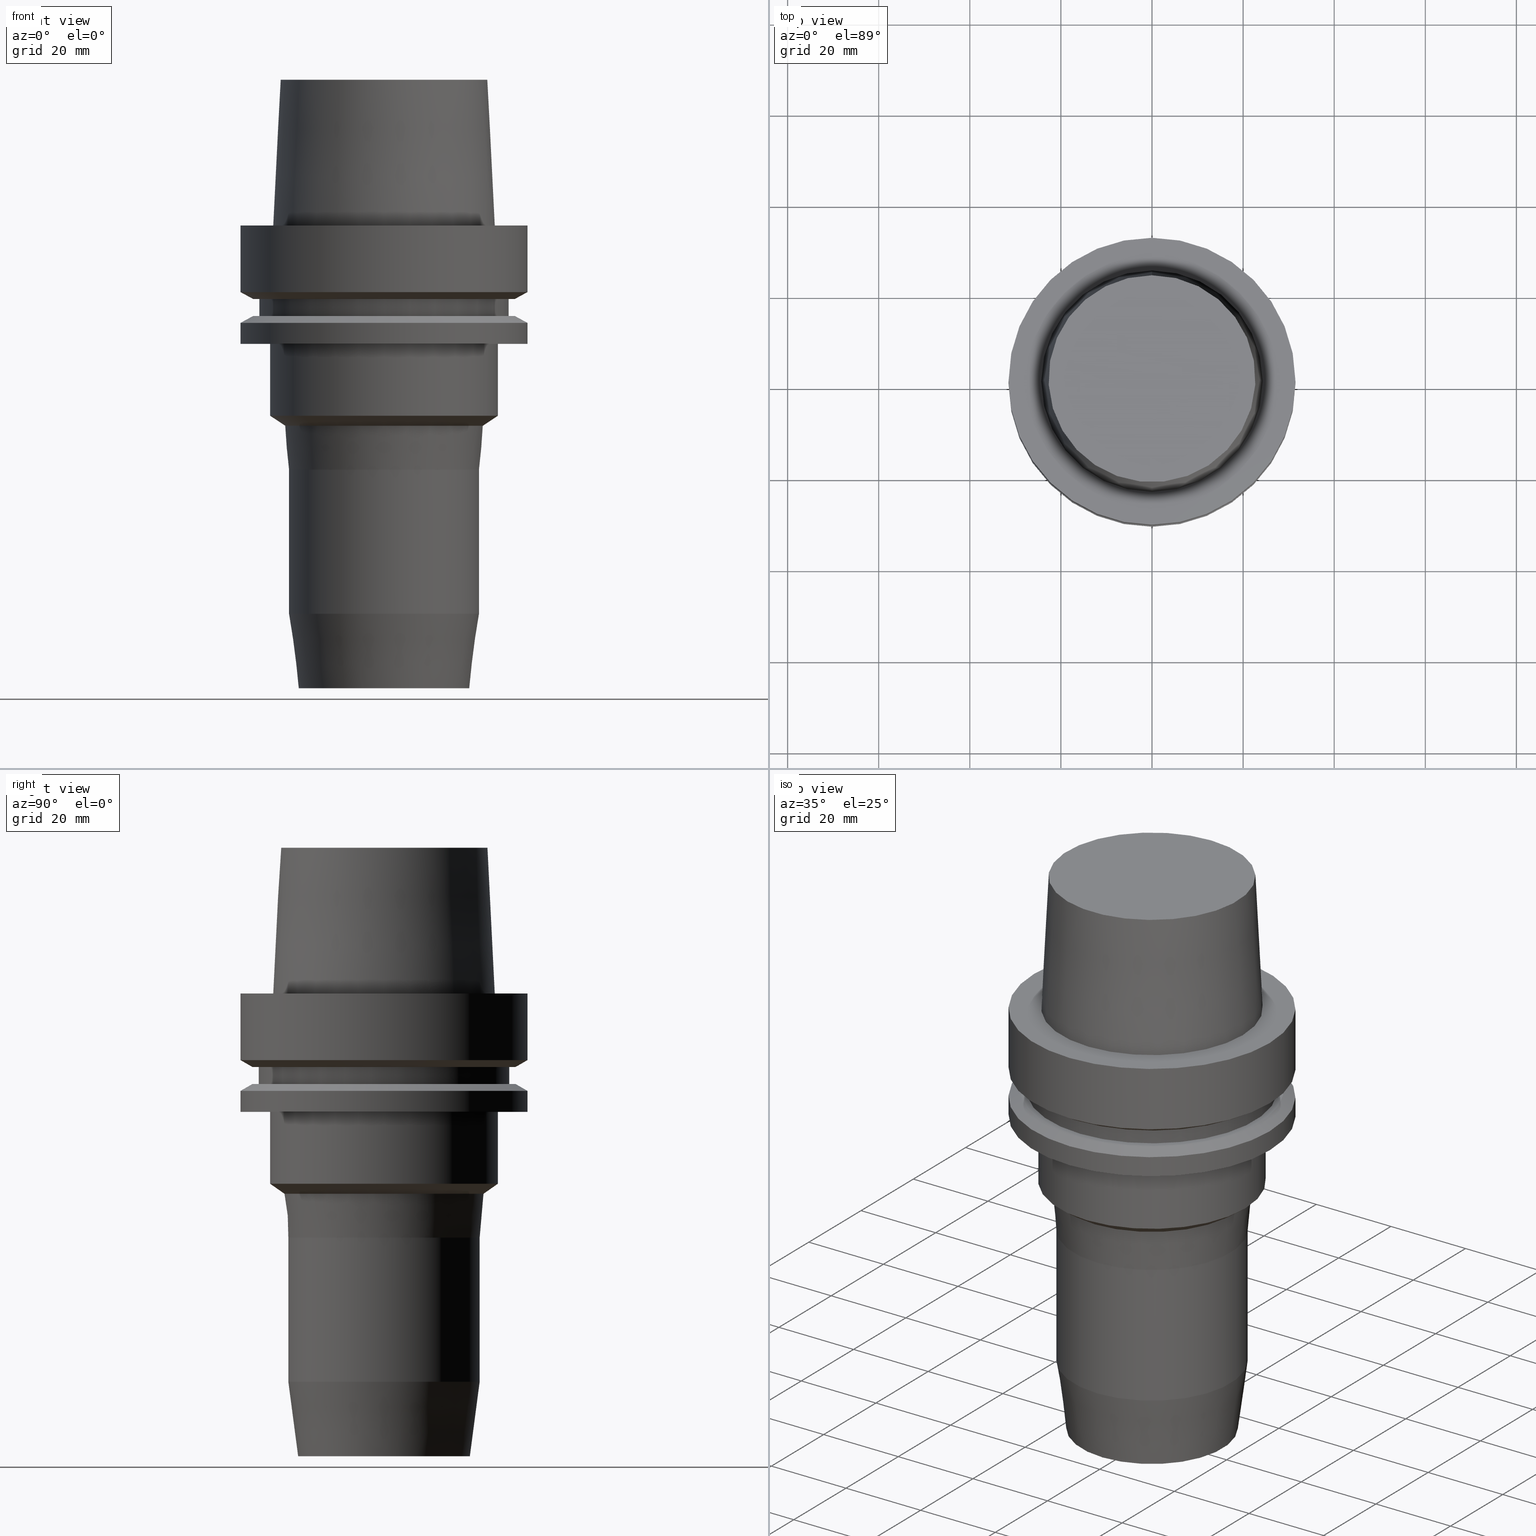
[diagram: canonical four-view strip — front | top / right | iso, engineering-drawing reading convention]
A machine part, canonical four-view strip (front | top / right | iso — engineering-drawing reading convention). The complete STEP part file that produces these views, byte-faithful:
ISO-10303-21;
HEADER;
FILE_DESCRIPTION((''),'1');
FILE_NAME('V:/90_\X2\53D65F9730C730FC30BF\X0\/00_\X2\6DE18DEF30C730FC30BF\X0\/ALL/HSK-BKUS\X2\52A05DE556F3\X0\_201801/HSK-A63-HDC/HSK-A63-HDC.750-4.stp','2018-02-01T05:22:38',(''),(''),'Spatial Interop R21 SP3','Kubotek KeyCreator 2011 V10.0.2 (22737)',' ');
FILE_SCHEMA(('automotive_design'));
ENDSEC;
DATA;
#1=MECHANICAL_DESIGN_GEOMETRIC_PRESENTATION_REPRESENTATION(' ',(#10,#11,#12,#13,#14,#15,#16,#17,#18,#19,#20,#21,#22,#23,#24,#25,#26,#27,#28,#29,#30,#31,#32,#33,#34,#35,#36,#37,#38,#39,#40,#41,#42,#43),#6);
#2=PRODUCT_DEFINITION_CONTEXT('',#44,'design');
#3=APPLICATION_PROTOCOL_DEFINITION('INTERNATIONAL STANDARD','automotive_design',1994,#44);
#4=PRODUCT_CATEGORY_RELATIONSHIP('NONE','NONE',#45,#46);
#5=SHAPE_DEFINITION_REPRESENTATION(#47,#48);
#6= (GEOMETRIC_REPRESENTATION_CONTEXT(3)GLOBAL_UNCERTAINTY_ASSIGNED_CONTEXT((#51))GLOBAL_UNIT_ASSIGNED_CONTEXT((#53,#54,#55))REPRESENTATION_CONTEXT('NONE','WORKSPACE'));
#10=STYLED_ITEM('',(#57,#58),#59);
#11=STYLED_ITEM('',(#60,#61),#62);
#12=STYLED_ITEM('',(#63),#64);
#13=STYLED_ITEM('',(#65,#66),#67);
#14=STYLED_ITEM('',(#68,#69),#70);
#15=STYLED_ITEM('',(#71),#72);
#16=STYLED_ITEM('',(#73),#74);
#17=STYLED_ITEM('',(#75,#76),#77);
#18=STYLED_ITEM('',(#78),#79);
#19=STYLED_ITEM('',(#80),#81);
#20=STYLED_ITEM('',(#82),#83);
#21=STYLED_ITEM('',(#84,#85),#86);
#22=STYLED_ITEM('',(#87),#88);
#23=STYLED_ITEM('',(#89),#90);
#24=STYLED_ITEM('',(#91,#92),#93);
#25=STYLED_ITEM('',(#94,#95),#96);
#26=STYLED_ITEM('',(#97,#98),#99);
#27=STYLED_ITEM('',(#100),#101);
#28=STYLED_ITEM('',(#102,#103),#104);
#29=STYLED_ITEM('',(#105),#106);
#30=STYLED_ITEM('',(#107,#108),#109);
#31=STYLED_ITEM('',(#110),#111);
#32=STYLED_ITEM('',(#112,#113),#114);
#33=STYLED_ITEM('',(#115,#116),#117);
#34=STYLED_ITEM('',(#118),#119);
#35=STYLED_ITEM('',(#120,#121),#122);
#36=STYLED_ITEM('',(#123),#124);
#37=STYLED_ITEM('',(#125),#126);
#38=STYLED_ITEM('',(#127),#128);
#39=STYLED_ITEM('',(#129,#130),#131);
#40=STYLED_ITEM('',(#132),#133);
#41=STYLED_ITEM('',(#134,#135),#136);
#42=STYLED_ITEM('',(#137,#138),#139);
#43=STYLED_ITEM('',(#140,#141),#142);
#44=APPLICATION_CONTEXT(' ');
#45=PRODUCT_CATEGORY('part','NONE');
#46=PRODUCT_RELATED_PRODUCT_CATEGORY('detail',' ',(#143));
#47=PRODUCT_DEFINITION_SHAPE('NONE','NONE',#144);
#48=ADVANCED_BREP_SHAPE_REPRESENTATION('Unnamed[1]',(#67,#145),#6);
#51=UNCERTAINTY_MEASURE_WITH_UNIT(LENGTH_MEASURE(1.0E-006),#53,'','');
#53= (CONVERSION_BASED_UNIT('MILLIMETRE',#148)LENGTH_UNIT()NAMED_UNIT(#151));
#54= (NAMED_UNIT(#153)PLANE_ANGLE_UNIT()SI_UNIT($,.RADIAN.));
#55= (NAMED_UNIT(#153)SOLID_ANGLE_UNIT()SI_UNIT($,.STERADIAN.));
#57=PRESENTATION_STYLE_ASSIGNMENT((#159));
#58=PRESENTATION_STYLE_ASSIGNMENT((#160));
#59=ADVANCED_FACE('Unnamed[1]',(#161,#162),#163,.T.);
#60=PRESENTATION_STYLE_ASSIGNMENT((#164));
#61=PRESENTATION_STYLE_ASSIGNMENT((#165));
#62=ADVANCED_FACE('Unnamed[1]',(#166,#167),#168,.T.);
#63=PRESENTATION_STYLE_ASSIGNMENT((#169));
#64=EDGE_CURVE('Unnamed[1]',#170,#170,#171,.T.);
#65=PRESENTATION_STYLE_ASSIGNMENT((#172));
#66=PRESENTATION_STYLE_ASSIGNMENT((#173));
#67=MANIFOLD_SOLID_BREP('Unnamed[1]',#174);
#68=PRESENTATION_STYLE_ASSIGNMENT((#175));
#69=PRESENTATION_STYLE_ASSIGNMENT((#176));
#70=ADVANCED_FACE('Unnamed[1]',(#177,#178),#179,.T.);
#71=PRESENTATION_STYLE_ASSIGNMENT((#180));
#72=EDGE_CURVE('Unnamed[1]',#181,#181,#182,.T.);
#73=PRESENTATION_STYLE_ASSIGNMENT((#183));
#74=EDGE_CURVE('Unnamed[1]',#184,#184,#185,.T.);
#75=PRESENTATION_STYLE_ASSIGNMENT((#186));
#76=PRESENTATION_STYLE_ASSIGNMENT((#187));
#77=ADVANCED_FACE('Unnamed[1]',(#188,#189),#190,.T.);
#78=PRESENTATION_STYLE_ASSIGNMENT((#191));
#79=EDGE_CURVE('Unnamed[1]',#192,#192,#193,.T.);
#80=PRESENTATION_STYLE_ASSIGNMENT((#194));
#81=EDGE_CURVE('Unnamed[1]',#195,#195,#196,.T.);
#82=PRESENTATION_STYLE_ASSIGNMENT((#197));
#83=EDGE_CURVE('Unnamed[1]',#198,#198,#199,.T.);
#84=PRESENTATION_STYLE_ASSIGNMENT((#200));
#85=PRESENTATION_STYLE_ASSIGNMENT((#201));
#86=ADVANCED_FACE('Unnamed[1]',(#202,#203),#204,.T.);
#87=PRESENTATION_STYLE_ASSIGNMENT((#205));
#88=EDGE_CURVE('Unnamed[1]',#206,#206,#207,.T.);
#89=PRESENTATION_STYLE_ASSIGNMENT((#208));
#90=EDGE_CURVE('Unnamed[1]',#209,#209,#210,.T.);
#91=PRESENTATION_STYLE_ASSIGNMENT((#211));
#92=PRESENTATION_STYLE_ASSIGNMENT((#212));
#93=ADVANCED_FACE('Unnamed[1]',(#213),#214,.T.);
#94=PRESENTATION_STYLE_ASSIGNMENT((#215));
#95=PRESENTATION_STYLE_ASSIGNMENT((#216));
#96=ADVANCED_FACE('Unnamed[1]',(#217,#218),#219,.T.);
#97=PRESENTATION_STYLE_ASSIGNMENT((#220));
#98=PRESENTATION_STYLE_ASSIGNMENT((#221));
#99=ADVANCED_FACE('Unnamed[1]',(#222),#223,.T.);
#100=PRESENTATION_STYLE_ASSIGNMENT((#224));
#101=EDGE_CURVE('Unnamed[1]',#225,#225,#226,.T.);
#102=PRESENTATION_STYLE_ASSIGNMENT((#227));
#103=PRESENTATION_STYLE_ASSIGNMENT((#228));
#104=ADVANCED_FACE('Unnamed[1]',(#229,#230),#231,.T.);
#105=PRESENTATION_STYLE_ASSIGNMENT((#232));
#106=EDGE_CURVE('Unnamed[1]',#233,#233,#234,.T.);
#107=PRESENTATION_STYLE_ASSIGNMENT((#235));
#108=PRESENTATION_STYLE_ASSIGNMENT((#236));
#109=ADVANCED_FACE('Unnamed[1]',(#237,#238),#239,.T.);
#110=PRESENTATION_STYLE_ASSIGNMENT((#240));
#111=EDGE_CURVE('Unnamed[1]',#241,#241,#242,.T.);
#112=PRESENTATION_STYLE_ASSIGNMENT((#243));
#113=PRESENTATION_STYLE_ASSIGNMENT((#244));
#114=ADVANCED_FACE('Unnamed[1]',(#245,#246),#247,.T.);
#115=PRESENTATION_STYLE_ASSIGNMENT((#248));
#116=PRESENTATION_STYLE_ASSIGNMENT((#249));
#117=ADVANCED_FACE('Unnamed[1]',(#250,#251),#252,.T.);
#118=PRESENTATION_STYLE_ASSIGNMENT((#253));
#119=EDGE_CURVE('Unnamed[1]',#254,#254,#255,.T.);
#120=PRESENTATION_STYLE_ASSIGNMENT((#256));
#121=PRESENTATION_STYLE_ASSIGNMENT((#257));
#122=ADVANCED_FACE('Unnamed[1]',(#258,#259),#260,.T.);
#123=PRESENTATION_STYLE_ASSIGNMENT((#261));
#124=EDGE_CURVE('Unnamed[1]',#262,#262,#263,.T.);
#125=PRESENTATION_STYLE_ASSIGNMENT((#264));
#126=EDGE_CURVE('Unnamed[1]',#265,#265,#266,.T.);
#127=PRESENTATION_STYLE_ASSIGNMENT((#267));
#128=EDGE_CURVE('Unnamed[1]',#268,#268,#269,.T.);
#129=PRESENTATION_STYLE_ASSIGNMENT((#270));
#130=PRESENTATION_STYLE_ASSIGNMENT((#271));
#131=ADVANCED_FACE('Unnamed[1]',(#272,#273),#274,.T.);
#132=PRESENTATION_STYLE_ASSIGNMENT((#275));
#133=EDGE_CURVE('Unnamed[1]',#276,#276,#277,.T.);
#134=PRESENTATION_STYLE_ASSIGNMENT((#278));
#135=PRESENTATION_STYLE_ASSIGNMENT((#279));
#136=ADVANCED_FACE('Unnamed[1]',(#280,#281),#282,.T.);
#137=PRESENTATION_STYLE_ASSIGNMENT((#283));
#138=PRESENTATION_STYLE_ASSIGNMENT((#284));
#139=ADVANCED_FACE('Unnamed[1]',(#285,#286),#287,.T.);
#140=PRESENTATION_STYLE_ASSIGNMENT((#288));
#141=PRESENTATION_STYLE_ASSIGNMENT((#289));
#142=ADVANCED_FACE('Unnamed[1]',(#290,#291),#292,.T.);
#143=PRODUCT('Unnamed[1]','Unnamed[1]','PART-Unnamed[1]-DESC',(#293));
#144=PRODUCT_DEFINITION('NONE','NONE',#294,#2);
#145=AXIS2_PLACEMENT_3D('',#295,#296,#297);
#148=LENGTH_MEASURE_WITH_UNIT(LENGTH_MEASURE(1.0),#298);
#151=DIMENSIONAL_EXPONENTS(1.0,0.0,0.0,0.0,0.0,0.0,0.0);
#153=DIMENSIONAL_EXPONENTS(0.0,0.0,0.0,0.0,0.0,0.0,0.0);
#159=SURFACE_STYLE_USAGE(.BOTH.,#299);
#160=CURVE_STYLE('',#300,POSITIVE_LENGTH_MEASURE(1000.0),#301);
#161=FACE_BOUND('',#302,.T.);
#162=FACE_OUTER_BOUND('',#303,.T.);
#163=PLANE('',#304);
#164=SURFACE_STYLE_USAGE(.BOTH.,#305);
#165=CURVE_STYLE('',#306,POSITIVE_LENGTH_MEASURE(1000.0),#307);
#166=FACE_BOUND('',#308,.T.);
#167=FACE_BOUND('',#309,.T.);
#168=CYLINDRICAL_SURFACE('',#310,25.0000000000004);
#169=CURVE_STYLE('',#311,POSITIVE_LENGTH_MEASURE(1000.0),#312);
#170=VERTEX_POINT('',#313);
#171=CIRCLE('',#314,25.0000000000001);
#172=SURFACE_STYLE_USAGE(.BOTH.,#315);
#173=CURVE_STYLE('',#316,POSITIVE_LENGTH_MEASURE(1000.0),#317);
#174=CLOSED_SHELL('',(#93,#104,#86,#139,#96,#59,#142,#136,#109,#131,#77,#62,#117,#70,#122,#114,#99));
#175=SURFACE_STYLE_USAGE(.BOTH.,#318);
#176=CURVE_STYLE('',#319,POSITIVE_LENGTH_MEASURE(1000.0),#320);
#177=FACE_BOUND('',#321,.T.);
#178=FACE_BOUND('',#322,.T.);
#179=CONICAL_SURFACE('',#323,21.4210001647443,0.0872664625997202);
#180=CURVE_STYLE('',#324,POSITIVE_LENGTH_MEASURE(1000.0),#325);
#181=VERTEX_POINT('',#326);
#182=CIRCLE('',#327,31.4999999999998);
#183=CURVE_STYLE('',#328,POSITIVE_LENGTH_MEASURE(1000.0),#329);
#184=VERTEX_POINT('',#330);
#185=CIRCLE('',#331,31.5000000000001);
#186=SURFACE_STYLE_USAGE(.BOTH.,#332);
#187=CURVE_STYLE('',#333,POSITIVE_LENGTH_MEASURE(1000.0),#334);
#188=FACE_BOUND('',#335,.T.);
#189=FACE_OUTER_BOUND('',#336,.T.);
#190=PLANE('',#337);
#191=CURVE_STYLE('',#338,POSITIVE_LENGTH_MEASURE(1000.0),#339);
#192=VERTEX_POINT('',#340);
#193=CIRCLE('',#341,20.9999999999997);
#194=CURVE_STYLE('',#342,POSITIVE_LENGTH_MEASURE(1000.0),#343);
#195=VERTEX_POINT('',#344);
#196=CIRCLE('',#345,28.8975952641919);
#197=CURVE_STYLE('',#346,POSITIVE_LENGTH_MEASURE(1000.0),#347);
#198=VERTEX_POINT('',#348);
#199=CIRCLE('',#349,21.8420003294889);
#200=SURFACE_STYLE_USAGE(.BOTH.,#350);
#201=CURVE_STYLE('',#351,POSITIVE_LENGTH_MEASURE(1000.0),#352);
#202=FACE_OUTER_BOUND('',#353,.T.);
#203=FACE_BOUND('',#354,.T.);
#204=PLANE('',#355);
#205=CURVE_STYLE('',#356,POSITIVE_LENGTH_MEASURE(1000.0),#357);
#206=VERTEX_POINT('',#358);
#207=CIRCLE('',#359,27.5);
#208=CURVE_STYLE('',#360,POSITIVE_LENGTH_MEASURE(1000.0),#361);
#209=VERTEX_POINT('',#362);
#210=CIRCLE('',#363,24.315);
#211=SURFACE_STYLE_USAGE(.BOTH.,#364);
#212=CURVE_STYLE('',#365,POSITIVE_LENGTH_MEASURE(1000.0),#366);
#213=FACE_OUTER_BOUND('',#367,.T.);
#214=PLANE('',#368);
#215=SURFACE_STYLE_USAGE(.BOTH.,#369);
#216=CURVE_STYLE('',#370,POSITIVE_LENGTH_MEASURE(1000.0),#371);
#217=FACE_BOUND('',#372,.T.);
#218=FACE_BOUND('',#373,.T.);
#219=CONICAL_SURFACE('',#374,30.1987976320959,1.04719755119657);
#220=SURFACE_STYLE_USAGE(.BOTH.,#375);
#221=CURVE_STYLE('',#376,POSITIVE_LENGTH_MEASURE(1000.0),#377);
#222=FACE_OUTER_BOUND('',#378,.T.);
#223=PLANE('',#379);
#224=CURVE_STYLE('',#380,POSITIVE_LENGTH_MEASURE(1000.0),#381);
#225=VERTEX_POINT('',#382);
#226=CIRCLE('',#383,31.5);
#227=SURFACE_STYLE_USAGE(.BOTH.,#384);
#228=CURVE_STYLE('',#385,POSITIVE_LENGTH_MEASURE(1000.0),#386);
#229=FACE_BOUND('',#387,.T.);
#230=FACE_BOUND('',#388,.T.);
#231=CONICAL_SURFACE('',#389,23.515,0.0499583957219433);
#232=CURVE_STYLE('',#390,POSITIVE_LENGTH_MEASURE(1000.0),#391);
#233=VERTEX_POINT('',#392);
#234=CIRCLE('',#393,18.8468234019571);
#235=SURFACE_STYLE_USAGE(.BOTH.,#394);
#236=CURVE_STYLE('',#395,POSITIVE_LENGTH_MEASURE(1000.0),#396);
#237=FACE_BOUND('',#397,.T.);
#238=FACE_BOUND('',#398,.T.);
#239=CONICAL_SURFACE('',#399,30.1987976320959,1.04719755119657);
#240=CURVE_STYLE('',#400,POSITIVE_LENGTH_MEASURE(1000.0),#401);
#241=VERTEX_POINT('',#402);
#242=CIRCLE('',#403,31.5);
#243=SURFACE_STYLE_USAGE(.BOTH.,#404);
#244=CURVE_STYLE('',#405,POSITIVE_LENGTH_MEASURE(1000.0),#406);
#245=FACE_BOUND('',#407,.T.);
#246=FACE_BOUND('',#408,.T.);
#247=CONICAL_SURFACE('',#409,19.9234117009784,0.13089969389958);
#248=SURFACE_STYLE_USAGE(.BOTH.,#410);
#249=CURVE_STYLE('',#411,POSITIVE_LENGTH_MEASURE(1000.0),#412);
#250=FACE_BOUND('',#413,.T.);
#251=FACE_BOUND('',#414,.T.);
#252=CONICAL_SURFACE('',#415,23.4210001647448,0.960502880313281);
#253=CURVE_STYLE('',#416,POSITIVE_LENGTH_MEASURE(1000.0),#417);
#254=VERTEX_POINT('',#418);
#255=CIRCLE('',#419,20.9999999999997);
#256=SURFACE_STYLE_USAGE(.BOTH.,#420);
#257=CURVE_STYLE('',#421,POSITIVE_LENGTH_MEASURE(1000.0),#422);
#258=FACE_BOUND('',#423,.T.);
#259=FACE_BOUND('',#424,.T.);
#260=CYLINDRICAL_SURFACE('',#425,20.9999999999997);
#261=CURVE_STYLE('',#426,POSITIVE_LENGTH_MEASURE(1000.0),#427);
#262=VERTEX_POINT('',#428);
#263=CIRCLE('',#429,25.0000000000007);
#264=CURVE_STYLE('',#430,POSITIVE_LENGTH_MEASURE(1000.0),#431);
#265=VERTEX_POINT('',#432);
#266=CIRCLE('',#433,27.4999999999989);
#267=CURVE_STYLE('',#434,POSITIVE_LENGTH_MEASURE(1000.0),#435);
#268=VERTEX_POINT('',#436);
#269=CIRCLE('',#437,22.715);
#270=SURFACE_STYLE_USAGE(.BOTH.,#438);
#271=CURVE_STYLE('',#439,POSITIVE_LENGTH_MEASURE(1000.0),#440);
#272=FACE_BOUND('',#441,.T.);
#273=FACE_BOUND('',#442,.T.);
#274=CYLINDRICAL_SURFACE('',#443,31.4999999999999);
#275=CURVE_STYLE('',#444,POSITIVE_LENGTH_MEASURE(1000.0),#445);
#276=VERTEX_POINT('',#446);
#277=CIRCLE('',#447,28.8975952641919);
#278=SURFACE_STYLE_USAGE(.BOTH.,#448);
#279=CURVE_STYLE('',#449,POSITIVE_LENGTH_MEASURE(1000.0),#450);
#280=FACE_OUTER_BOUND('',#451,.T.);
#281=FACE_BOUND('',#452,.T.);
#282=PLANE('',#453);
#283=SURFACE_STYLE_USAGE(.BOTH.,#454);
#284=CURVE_STYLE('',#455,POSITIVE_LENGTH_MEASURE(1000.0),#456);
#285=FACE_BOUND('',#457,.T.);
#286=FACE_BOUND('',#458,.T.);
#287=CYLINDRICAL_SURFACE('',#459,31.5);
#288=SURFACE_STYLE_USAGE(.BOTH.,#460);
#289=CURVE_STYLE('',#461,POSITIVE_LENGTH_MEASURE(1000.0),#462);
#290=FACE_BOUND('',#463,.T.);
#291=FACE_BOUND('',#464,.T.);
#292=CYLINDRICAL_SURFACE('',#465,27.4999999999994);
#293=PRODUCT_CONTEXT('',#44,'mechanical');
#294=PRODUCT_DEFINITION_FORMATION_WITH_SPECIFIED_SOURCE(' ','NONE',#143,.NOT_KNOWN.);
#295=CARTESIAN_POINT('',(0.0,0.0,0.0));
#296=DIRECTION('',(0.0,0.0,1.0));
#297=DIRECTION('',(1.0,0.0,0.0));
#298= (NAMED_UNIT(#151)LENGTH_UNIT()SI_UNIT(.MILLI.,.METRE.));
#299=SURFACE_SIDE_STYLE('',(#467));
#300=DRAUGHTING_PRE_DEFINED_CURVE_FONT('continuous');
#301=COLOUR_RGB('',0.0,1.0,0.0);
#302=EDGE_LOOP('',(#468));
#303=EDGE_LOOP('',(#469));
#304=AXIS2_PLACEMENT_3D('',#470,#471,#472);
#305=SURFACE_SIDE_STYLE('',(#473));
#306=DRAUGHTING_PRE_DEFINED_CURVE_FONT('continuous');
#307=COLOUR_RGB('',0.0,1.0,0.0);
#308=EDGE_LOOP('',(#474));
#309=EDGE_LOOP('',(#475));
#310=AXIS2_PLACEMENT_3D('',#476,#477,#478);
#311=DRAUGHTING_PRE_DEFINED_CURVE_FONT('continuous');
#312=COLOUR_RGB('',0.0,1.0,0.0);
#313=CARTESIAN_POINT('',(1.59204083889154E-015,25.0000000000001,-25.9999999999996));
#314=AXIS2_PLACEMENT_3D('',#479,#480,#481);
#315=SURFACE_SIDE_STYLE('',(#482));
#316=DRAUGHTING_PRE_DEFINED_CURVE_FONT('continuous');
#317=COLOUR_RGB('',0.0,1.0,0.0);
#318=SURFACE_SIDE_STYLE('',(#483));
#319=DRAUGHTING_PRE_DEFINED_CURVE_FONT('continuous');
#320=COLOUR_RGB('',0.0,1.0,0.0);
#321=EDGE_LOOP('',(#484));
#322=EDGE_LOOP('',(#485));
#323=AXIS2_PLACEMENT_3D('',#486,#487,#488);
#324=DRAUGHTING_PRE_DEFINED_CURVE_FONT('continuous');
#325=COLOUR_RGB('',0.0,1.0,0.0);
#326=CARTESIAN_POINT('',(1.59204083889155E-015,31.4999999999998,-25.9999999999999));
#327=AXIS2_PLACEMENT_3D('',#489,#490,#491);
#328=DRAUGHTING_PRE_DEFINED_CURVE_FONT('continuous');
#329=COLOUR_RGB('',0.0,1.0,0.0);
#330=CARTESIAN_POINT('',(-3.88267476788467E-031,31.5000000000001,3.85763741731417E-015));
#331=AXIS2_PLACEMENT_3D('',#492,#493,#494);
#332=SURFACE_SIDE_STYLE('',(#495));
#333=DRAUGHTING_PRE_DEFINED_CURVE_FONT('continuous');
#334=COLOUR_RGB('',0.0,1.0,0.0);
#335=EDGE_LOOP('',(#496));
#336=EDGE_LOOP('',(#497));
#337=AXIS2_PLACEMENT_3D('',#498,#499,#500);
#338=DRAUGHTING_PRE_DEFINED_CURVE_FONT('continuous');
#339=COLOUR_RGB('',0.0,1.0,0.0);
#340=CARTESIAN_POINT('',(5.21975081966552E-015,20.9999999999997,-85.2449999999954));
#341=AXIS2_PLACEMENT_3D('',#501,#502,#503);
#342=DRAUGHTING_PRE_DEFINED_CURVE_FONT('continuous');
#343=COLOUR_RGB('',0.0,1.0,0.0);
#344=CARTESIAN_POINT('',(1.21699275665268E-015,28.8975952641919,-19.875));
#345=AXIS2_PLACEMENT_3D('',#504,#505,#506);
#346=DRAUGHTING_PRE_DEFINED_CURVE_FONT('continuous');
#347=COLOUR_RGB('',0.0,1.0,0.0);
#348=CARTESIAN_POINT('',(2.69274678081274E-015,21.8420003294889,-43.9758921949992));
#349=AXIS2_PLACEMENT_3D('',#507,#508,#509);
#350=SURFACE_SIDE_STYLE('',(#510));
#351=DRAUGHTING_PRE_DEFINED_CURVE_FONT('continuous');
#352=COLOUR_RGB('',0.0,1.0,0.0);
#353=EDGE_LOOP('',(#511));
#354=EDGE_LOOP('',(#512));
#355=AXIS2_PLACEMENT_3D('',#513,#514,#515);
#356=DRAUGHTING_PRE_DEFINED_CURVE_FONT('continuous');
#357=COLOUR_RGB('',0.0,1.0,0.0);
#358=CARTESIAN_POINT('',(9.87371481812537E-016,27.5,-16.1249999999997));
#359=AXIS2_PLACEMENT_3D('',#516,#517,#518);
#360=DRAUGHTING_PRE_DEFINED_CURVE_FONT('continuous');
#361=COLOUR_RGB('',0.0,1.0,0.0);
#362=CARTESIAN_POINT('',(-2.99705514225764E-031,24.315,2.97772869212679E-015));
#363=AXIS2_PLACEMENT_3D('',#519,#520,#521);
#364=SURFACE_SIDE_STYLE('',(#522));
#365=DRAUGHTING_PRE_DEFINED_CURVE_FONT('continuous');
#366=COLOUR_RGB('',0.0,1.0,0.0);
#367=EDGE_LOOP('',(#523));
#368=AXIS2_PLACEMENT_3D('',#524,#525,#526);
#369=SURFACE_SIDE_STYLE('',(#527));
#370=DRAUGHTING_PRE_DEFINED_CURVE_FONT('continuous');
#371=COLOUR_RGB('',0.0,1.0,0.0);
#372=EDGE_LOOP('',(#528));
#373=EDGE_LOOP('',(#529));
#374=AXIS2_PLACEMENT_3D('',#530,#531,#532);
#375=SURFACE_SIDE_STYLE('',(#533));
#376=DRAUGHTING_PRE_DEFINED_CURVE_FONT('continuous');
#377=COLOUR_RGB('',0.0,1.0,0.0);
#378=EDGE_LOOP('',(#534));
#379=AXIS2_PLACEMENT_3D('',#535,#536,#537);
#380=DRAUGHTING_PRE_DEFINED_CURVE_FONT('continuous');
#381=COLOUR_RGB('',0.0,1.0,0.0);
#382=CARTESIAN_POINT('',(8.95369947681261E-016,31.5,-14.6225009252407));
#383=AXIS2_PLACEMENT_3D('',#538,#539,#540);
#384=SURFACE_SIDE_STYLE('',(#541));
#385=DRAUGHTING_PRE_DEFINED_CURVE_FONT('continuous');
#386=COLOUR_RGB('',0.0,1.0,0.0);
#387=EDGE_LOOP('',(#542));
#388=EDGE_LOOP('',(#543));
#389=AXIS2_PLACEMENT_3D('',#544,#545,#546);
#390=DRAUGHTING_PRE_DEFINED_CURVE_FONT('continuous');
#391=COLOUR_RGB('',0.0,1.0,0.0);
#392=CARTESIAN_POINT('',(6.22120573966854E-015,18.8468234019571,-101.6));
#393=AXIS2_PLACEMENT_3D('',#547,#548,#549);
#394=SURFACE_SIDE_STYLE('',(#550));
#395=DRAUGHTING_PRE_DEFINED_CURVE_FONT('continuous');
#396=COLOUR_RGB('',0.0,1.0,0.0);
#397=EDGE_LOOP('',(#551));
#398=EDGE_LOOP('',(#552));
#399=AXIS2_PLACEMENT_3D('',#553,#554,#555);
#400=DRAUGHTING_PRE_DEFINED_CURVE_FONT('continuous');
#401=COLOUR_RGB('',0.0,1.0,0.0);
#402=CARTESIAN_POINT('',(1.30899429078397E-015,31.5,-21.3774990747592));
#403=AXIS2_PLACEMENT_3D('',#556,#557,#558);
#404=SURFACE_SIDE_STYLE('',(#559));
#405=DRAUGHTING_PRE_DEFINED_CURVE_FONT('continuous');
#406=COLOUR_RGB('',0.0,1.0,0.0);
#407=EDGE_LOOP('',(#560));
#408=EDGE_LOOP('',(#561));
#409=AXIS2_PLACEMENT_3D('',#562,#563,#564);
#410=SURFACE_SIDE_STYLE('',(#565));
#411=DRAUGHTING_PRE_DEFINED_CURVE_FONT('continuous');
#412=COLOUR_RGB('',0.0,1.0,0.0);
#413=EDGE_LOOP('',(#566));
#414=EDGE_LOOP('',(#567));
#415=AXIS2_PLACEMENT_3D('',#568,#569,#570);
#416=DRAUGHTING_PRE_DEFINED_CURVE_FONT('continuous');
#417=COLOUR_RGB('',0.0,1.0,0.0);
#418=CARTESIAN_POINT('',(3.28205342171507E-015,20.9999999999997,-53.6000000000028));
#419=AXIS2_PLACEMENT_3D('',#571,#572,#573);
#420=SURFACE_SIDE_STYLE('',(#574));
#421=DRAUGHTING_PRE_DEFINED_CURVE_FONT('continuous');
#422=COLOUR_RGB('',0.0,1.0,0.0);
#423=EDGE_LOOP('',(#575));
#424=EDGE_LOOP('',(#576));
#425=AXIS2_PLACEMENT_3D('',#577,#578,#579);
#426=DRAUGHTING_PRE_DEFINED_CURVE_FONT('continuous');
#427=COLOUR_RGB('',0.0,1.0,0.0);
#428=CARTESIAN_POINT('',(2.55751116523846E-015,25.0000000000007,-41.7673269879789));
#429=AXIS2_PLACEMENT_3D('',#580,#581,#582);
#430=DRAUGHTING_PRE_DEFINED_CURVE_FONT('continuous');
#431=COLOUR_RGB('',0.0,1.0,0.0);
#432=CARTESIAN_POINT('',(1.21699275665276E-015,27.4999999999989,-19.8750000000013));
#433=AXIS2_PLACEMENT_3D('',#583,#584,#585);
#434=DRAUGHTING_PRE_DEFINED_CURVE_FONT('continuous');
#435=COLOUR_RGB('',0.0,1.0,0.0);
#436=CARTESIAN_POINT('',(-1.95943487863576E-015,22.715,32.0));
#437=AXIS2_PLACEMENT_3D('',#586,#587,#588);
#438=SURFACE_SIDE_STYLE('',(#589));
#439=DRAUGHTING_PRE_DEFINED_CURVE_FONT('continuous');
#440=COLOUR_RGB('',0.0,1.0,0.0);
#441=EDGE_LOOP('',(#590));
#442=EDGE_LOOP('',(#591));
#443=AXIS2_PLACEMENT_3D('',#592,#593,#594);
#444=DRAUGHTING_PRE_DEFINED_CURVE_FONT('continuous');
#445=COLOUR_RGB('',0.0,1.0,0.0);
#446=CARTESIAN_POINT('',(9.87371481812551E-016,28.8975952641919,-16.125));
#447=AXIS2_PLACEMENT_3D('',#595,#596,#597);
#448=SURFACE_SIDE_STYLE('',(#598));
#449=DRAUGHTING_PRE_DEFINED_CURVE_FONT('continuous');
#450=COLOUR_RGB('',0.0,1.0,0.0);
#451=EDGE_LOOP('',(#599));
#452=EDGE_LOOP('',(#600));
#453=AXIS2_PLACEMENT_3D('',#601,#602,#603);
#454=SURFACE_SIDE_STYLE('',(#604));
#455=DRAUGHTING_PRE_DEFINED_CURVE_FONT('continuous');
#456=COLOUR_RGB('',0.0,1.0,0.0);
#457=EDGE_LOOP('',(#605));
#458=EDGE_LOOP('',(#606));
#459=AXIS2_PLACEMENT_3D('',#607,#608,#609);
#460=SURFACE_SIDE_STYLE('',(#610));
#461=DRAUGHTING_PRE_DEFINED_CURVE_FONT('continuous');
#462=COLOUR_RGB('',0.0,1.0,0.0);
#463=EDGE_LOOP('',(#611));
#464=EDGE_LOOP('',(#612));
#465=AXIS2_PLACEMENT_3D('',#613,#614,#615);
#467=SURFACE_STYLE_FILL_AREA(#616);
#468=ORIENTED_EDGE('',*,*,#88,.F.);
#469=ORIENTED_EDGE('',*,*,#133,.T.);
#470=CARTESIAN_POINT('',(9.87371481812544E-016,28.1987976320959,-16.1249999999999));
#471=DIRECTION('',(6.12323399573677E-017,-1.65108768595307E-013,-1.0));
#472=DIRECTION('',(1.01051690958394E-029,1.0,-1.65108768595307E-013));
#473=SURFACE_STYLE_FILL_AREA(#617);
#474=ORIENTED_EDGE('',*,*,#124,.F.);
#475=ORIENTED_EDGE('',*,*,#64,.T.);
#476=CARTESIAN_POINT('',(2.074776002065E-015,4.14955200413E-015,-33.8836634939893));
#477=DIRECTION('',(6.12323399573677E-017,1.22464679914735E-016,-1.0));
#478=DIRECTION('',(-1.23259516440783E-032,1.0,1.22464679914735E-016));
#479=CARTESIAN_POINT('',(1.59204083889154E-015,3.18408167778307E-015,-25.9999999999996));
#480=DIRECTION('',(6.12323399573677E-017,1.22464679914735E-016,-1.0));
#481=DIRECTION('',(-1.23259516440783E-032,1.0,1.22464679914735E-016));
#482=SURFACE_STYLE_FILL_AREA(#618);
#483=SURFACE_STYLE_FILL_AREA(#619);
#484=ORIENTED_EDGE('',*,*,#119,.F.);
#485=ORIENTED_EDGE('',*,*,#83,.T.);
#486=CARTESIAN_POINT('',(2.98740010126391E-015,5.97480020252781E-015,-48.787946097501));
#487=DIRECTION('',(-6.12323399573677E-017,-1.22464679914735E-016,1.0));
#488=DIRECTION('',(-1.23259516440783E-032,1.0,1.22464679914735E-016));
#489=CARTESIAN_POINT('',(1.59204083889155E-015,3.1840816777831E-015,-25.9999999999999));
#490=DIRECTION('',(6.12323399573676E-017,1.22464679914735E-016,-1.0));
#491=DIRECTION('',(-1.23259516440783E-032,1.0,1.22464679914735E-016));
#492=CARTESIAN_POINT('',(0.0,0.0,0.0));
#493=DIRECTION('',(6.12323399573677E-017,1.22464679914735E-016,-1.0));
#494=DIRECTION('',(-1.23259516440783E-032,1.0,1.22464679914735E-016));
#495=SURFACE_STYLE_FILL_AREA(#620);
#496=ORIENTED_EDGE('',*,*,#64,.F.);
#497=ORIENTED_EDGE('',*,*,#72,.T.);
#498=CARTESIAN_POINT('',(1.59204083889154E-015,28.2499999999999,-25.9999999999998));
#499=DIRECTION('',(6.12323399573677E-017,-3.97772427896923E-014,-1.0));
#500=DIRECTION('',(2.43082650033442E-030,1.0,-3.97772427896923E-014));
#501=CARTESIAN_POINT('',(5.21975081966552E-015,1.0439501639331E-014,-85.2449999999954));
#502=DIRECTION('',(6.12323399573677E-017,1.22464679914735E-016,-1.0));
#503=DIRECTION('',(-1.23259516440783E-032,1.0,1.22464679914735E-016));
#504=CARTESIAN_POINT('',(1.21699275665268E-015,2.43398551330536E-015,-19.875));
#505=DIRECTION('',(6.12323399573677E-017,1.22464679914735E-016,-1.0));
#506=DIRECTION('',(-1.23259516440783E-032,1.0,1.22464679914735E-016));
#507=CARTESIAN_POINT('',(2.69274678081274E-015,5.38549356162548E-015,-43.9758921949992));
#508=DIRECTION('',(6.12323399573677E-017,1.22464679914735E-016,-1.0));
#509=DIRECTION('',(-1.23259516440783E-032,1.0,1.22464679914735E-016));
#510=SURFACE_STYLE_FILL_AREA(#621);
#511=ORIENTED_EDGE('',*,*,#74,.F.);
#512=ORIENTED_EDGE('',*,*,#90,.T.);
#513=CARTESIAN_POINT('',(-3.43986495507116E-031,27.9075,3.41768305472048E-015));
#514=DIRECTION('',(-6.12323399573677E-017,-1.22464679914735E-016,1.0));
#515=DIRECTION('',(1.23259516440783E-032,-1.0,-1.22464679914735E-016));
#516=CARTESIAN_POINT('',(9.87371481812538E-016,1.97474296362508E-015,-16.1249999999997));
#517=DIRECTION('',(6.12323399573677E-017,1.22464679914735E-016,-1.0));
#518=DIRECTION('',(-1.23259516440783E-032,1.0,1.22464679914735E-016));
#519=CARTESIAN_POINT('',(0.0,0.0,0.0));
#520=DIRECTION('',(6.12323399573677E-017,1.22464679914735E-016,-1.0));
#521=DIRECTION('',(-1.23259516440783E-032,1.0,1.22464679914735E-016));
#522=SURFACE_STYLE_FILL_AREA(#622);
#523=ORIENTED_EDGE('',*,*,#128,.F.);
#524=CARTESIAN_POINT('',(-1.95943487863576E-015,11.3575,32.0));
#525=DIRECTION('',(-6.12323399573677E-017,9.72362339746437E-016,1.0));
#526=DIRECTION('',(-5.47128686183263E-032,-1.0,9.72362339746437E-016));
#527=SURFACE_STYLE_FILL_AREA(#623);
#528=ORIENTED_EDGE('',*,*,#133,.F.);
#529=ORIENTED_EDGE('',*,*,#101,.T.);
#530=CARTESIAN_POINT('',(9.41370714746907E-016,1.88274142949381E-015,-15.3737504626203));
#531=DIRECTION('',(-6.12323399573677E-017,-1.22464679914735E-016,1.0));
#532=DIRECTION('',(-1.23259516440783E-032,1.0,1.22464679914735E-016));
#533=SURFACE_STYLE_FILL_AREA(#624);
#534=ORIENTED_EDGE('',*,*,#106,.T.);
#535=CARTESIAN_POINT('',(6.22120573966855E-015,9.42341170097858,-101.6));
#536=DIRECTION('',(6.12323399573677E-017,8.4166688825704E-015,-1.0));
#537=DIRECTION('',(-5.20199483056918E-031,1.0,8.4166688825704E-015));
#538=CARTESIAN_POINT('',(8.95369947681262E-016,1.79073989536252E-015,-14.6225009252407));
#539=DIRECTION('',(6.12323399573677E-017,1.22464679914735E-016,-1.0));
#540=DIRECTION('',(-1.23259516440783E-032,1.0,1.22464679914735E-016));
#541=SURFACE_STYLE_FILL_AREA(#625);
#542=ORIENTED_EDGE('',*,*,#90,.F.);
#543=ORIENTED_EDGE('',*,*,#128,.T.);
#544=CARTESIAN_POINT('',(-9.79717439317882E-016,-1.95943487863576E-015,16.0));
#545=DIRECTION('',(6.12323399573677E-017,1.22464679914735E-016,-1.0));
#546=DIRECTION('',(-1.23259516440783E-032,1.0,1.22464679914735E-016));
#547=CARTESIAN_POINT('',(6.22120573966854E-015,1.24424114793371E-014,-101.6));
#548=DIRECTION('',(6.12323399573677E-017,1.22464679914735E-016,-1.0));
#549=DIRECTION('',(-1.23259516440783E-032,1.0,1.22464679914735E-016));
#550=SURFACE_STYLE_FILL_AREA(#626);
#551=ORIENTED_EDGE('',*,*,#111,.F.);
#552=ORIENTED_EDGE('',*,*,#81,.T.);
#553=CARTESIAN_POINT('',(1.26299352371833E-015,2.52598704743665E-015,-20.6262495373796));
#554=DIRECTION('',(6.12323399573677E-017,1.22464679914735E-016,-1.0));
#555=DIRECTION('',(-1.23259516440783E-032,1.0,1.22464679914735E-016));
#556=CARTESIAN_POINT('',(1.30899429078397E-015,2.61798858156794E-015,-21.3774990747592));
#557=DIRECTION('',(6.12323399573677E-017,1.22464679914735E-016,-1.0));
#558=DIRECTION('',(-1.23259516440783E-032,1.0,1.22464679914735E-016));
#559=SURFACE_STYLE_FILL_AREA(#627);
#560=ORIENTED_EDGE('',*,*,#106,.F.);
#561=ORIENTED_EDGE('',*,*,#79,.T.);
#562=CARTESIAN_POINT('',(5.72047827966703E-015,1.14409565593341E-014,-93.4224999999976));
#563=DIRECTION('',(-6.12323399573677E-017,-1.22464679914735E-016,1.0));
#564=DIRECTION('',(-1.23259516440783E-032,1.0,1.22464679914735E-016));
#565=SURFACE_STYLE_FILL_AREA(#628);
#566=ORIENTED_EDGE('',*,*,#83,.F.);
#567=ORIENTED_EDGE('',*,*,#124,.T.);
#568=CARTESIAN_POINT('',(2.6251289730256E-015,5.2502579460512E-015,-42.871609591489));
#569=DIRECTION('',(-6.12323399573677E-017,-1.22464679914735E-016,1.0));
#570=DIRECTION('',(-1.23259516440783E-032,1.0,1.22464679914735E-016));
#571=CARTESIAN_POINT('',(3.28205342171508E-015,6.56410684343015E-015,-53.6000000000028));
#572=DIRECTION('',(6.12323399573677E-017,1.22464679914735E-016,-1.0));
#573=DIRECTION('',(-1.23259516440783E-032,1.0,1.22464679914735E-016));
#574=SURFACE_STYLE_FILL_AREA(#629);
#575=ORIENTED_EDGE('',*,*,#79,.F.);
#576=ORIENTED_EDGE('',*,*,#119,.T.);
#577=CARTESIAN_POINT('',(4.2509021206903E-015,8.5018042413806E-015,-69.4224999999991));
#578=DIRECTION('',(6.12323399573677E-017,1.22464679914735E-016,-1.0));
#579=DIRECTION('',(-1.23259516440783E-032,1.0,1.22464679914735E-016));
#580=CARTESIAN_POINT('',(2.55751116523846E-015,5.11502233047692E-015,-41.7673269879789));
#581=DIRECTION('',(6.12323399573677E-017,1.22464679914735E-016,-1.0));
#582=DIRECTION('',(-1.23259516440783E-032,1.0,1.22464679914735E-016));
#583=CARTESIAN_POINT('',(1.21699275665276E-015,2.43398551330552E-015,-19.8750000000013));
#584=DIRECTION('',(6.12323399573677E-017,1.22464679914735E-016,-1.0));
#585=DIRECTION('',(-1.23259516440783E-032,1.0,1.22464679914735E-016));
#586=CARTESIAN_POINT('',(-1.95943487863576E-015,-3.91886975727153E-015,32.0));
#587=DIRECTION('',(6.12323399573676E-017,1.22464679914735E-016,-1.0));
#588=DIRECTION('',(-1.23259516440783E-032,1.0,1.22464679914735E-016));
#589=SURFACE_STYLE_FILL_AREA(#630);
#590=ORIENTED_EDGE('',*,*,#72,.F.);
#591=ORIENTED_EDGE('',*,*,#111,.T.);
#592=CARTESIAN_POINT('',(1.45051756483776E-015,2.90103512967552E-015,-23.6887495373796));
#593=DIRECTION('',(6.12323399573677E-017,1.22464679914735E-016,-1.0));
#594=DIRECTION('',(-1.23259516440783E-032,1.0,1.22464679914735E-016));
#595=CARTESIAN_POINT('',(9.87371481812552E-016,1.9747429636251E-015,-16.125));
#596=DIRECTION('',(6.12323399573677E-017,1.22464679914735E-016,-1.0));
#597=DIRECTION('',(-1.23259516440783E-032,1.0,1.22464679914735E-016));
#598=SURFACE_STYLE_FILL_AREA(#631);
#599=ORIENTED_EDGE('',*,*,#81,.F.);
#600=ORIENTED_EDGE('',*,*,#126,.T.);
#601=CARTESIAN_POINT('',(1.21699275665272E-015,28.1987976320954,-19.8750000000006));
#602=DIRECTION('',(-6.12323399573677E-017,-9.58463617675421E-013,1.0));
#603=DIRECTION('',(5.86937972270006E-029,-1.0,-9.58463617675421E-013));
#604=SURFACE_STYLE_FILL_AREA(#632);
#605=ORIENTED_EDGE('',*,*,#101,.F.);
#606=ORIENTED_EDGE('',*,*,#74,.T.);
#607=CARTESIAN_POINT('',(4.47684973840631E-016,8.95369947681262E-016,-7.31125046262035));
#608=DIRECTION('',(6.12323399573677E-017,1.22464679914735E-016,-1.0));
#609=DIRECTION('',(-1.23259516440783E-032,1.0,1.22464679914735E-016));
#610=SURFACE_STYLE_FILL_AREA(#633);
#611=ORIENTED_EDGE('',*,*,#126,.F.);
#612=ORIENTED_EDGE('',*,*,#88,.T.);
#613=CARTESIAN_POINT('',(1.10218211923265E-015,2.2043642384653E-015,-18.0000000000005));
#614=DIRECTION('',(6.12323399573677E-017,1.22464679914735E-016,-1.0));
#615=DIRECTION('',(-1.23259516440783E-032,1.0,1.22464679914735E-016));
#616=FILL_AREA_STYLE('',(#634));
#617=FILL_AREA_STYLE('',(#635));
#618=FILL_AREA_STYLE('',(#636));
#619=FILL_AREA_STYLE('',(#637));
#620=FILL_AREA_STYLE('',(#638));
#621=FILL_AREA_STYLE('',(#639));
#622=FILL_AREA_STYLE('',(#640));
#623=FILL_AREA_STYLE('',(#641));
#624=FILL_AREA_STYLE('',(#642));
#625=FILL_AREA_STYLE('',(#643));
#626=FILL_AREA_STYLE('',(#644));
#627=FILL_AREA_STYLE('',(#645));
#628=FILL_AREA_STYLE('',(#646));
#629=FILL_AREA_STYLE('',(#647));
#630=FILL_AREA_STYLE('',(#648));
#631=FILL_AREA_STYLE('',(#649));
#632=FILL_AREA_STYLE('',(#650));
#633=FILL_AREA_STYLE('',(#651));
#634=FILL_AREA_STYLE_COLOUR('',#652);
#635=FILL_AREA_STYLE_COLOUR('',#653);
#636=FILL_AREA_STYLE_COLOUR('',#654);
#637=FILL_AREA_STYLE_COLOUR('',#655);
#638=FILL_AREA_STYLE_COLOUR('',#656);
#639=FILL_AREA_STYLE_COLOUR('',#657);
#640=FILL_AREA_STYLE_COLOUR('',#658);
#641=FILL_AREA_STYLE_COLOUR('',#659);
#642=FILL_AREA_STYLE_COLOUR('',#660);
#643=FILL_AREA_STYLE_COLOUR('',#661);
#644=FILL_AREA_STYLE_COLOUR('',#662);
#645=FILL_AREA_STYLE_COLOUR('',#663);
#646=FILL_AREA_STYLE_COLOUR('',#664);
#647=FILL_AREA_STYLE_COLOUR('',#665);
#648=FILL_AREA_STYLE_COLOUR('',#666);
#649=FILL_AREA_STYLE_COLOUR('',#667);
#650=FILL_AREA_STYLE_COLOUR('',#668);
#651=FILL_AREA_STYLE_COLOUR('',#669);
#652=COLOUR_RGB('',0.0,1.0,0.0);
#653=COLOUR_RGB('',0.0,1.0,0.0);
#654=COLOUR_RGB('',0.0,1.0,0.0);
#655=COLOUR_RGB('',0.0,1.0,0.0);
#656=COLOUR_RGB('',0.0,1.0,0.0);
#657=COLOUR_RGB('',0.0,1.0,0.0);
#658=COLOUR_RGB('',0.0,1.0,0.0);
#659=COLOUR_RGB('',0.0,1.0,0.0);
#660=COLOUR_RGB('',0.0,1.0,0.0);
#661=COLOUR_RGB('',0.0,1.0,0.0);
#662=COLOUR_RGB('',0.0,1.0,0.0);
#663=COLOUR_RGB('',0.0,1.0,0.0);
#664=COLOUR_RGB('',0.0,1.0,0.0);
#665=COLOUR_RGB('',0.0,1.0,0.0);
#666=COLOUR_RGB('',0.0,1.0,0.0);
#667=COLOUR_RGB('',0.0,1.0,0.0);
#668=COLOUR_RGB('',0.0,1.0,0.0);
#669=COLOUR_RGB('',0.0,1.0,0.0);
ENDSEC;
END-ISO-10303-21;
